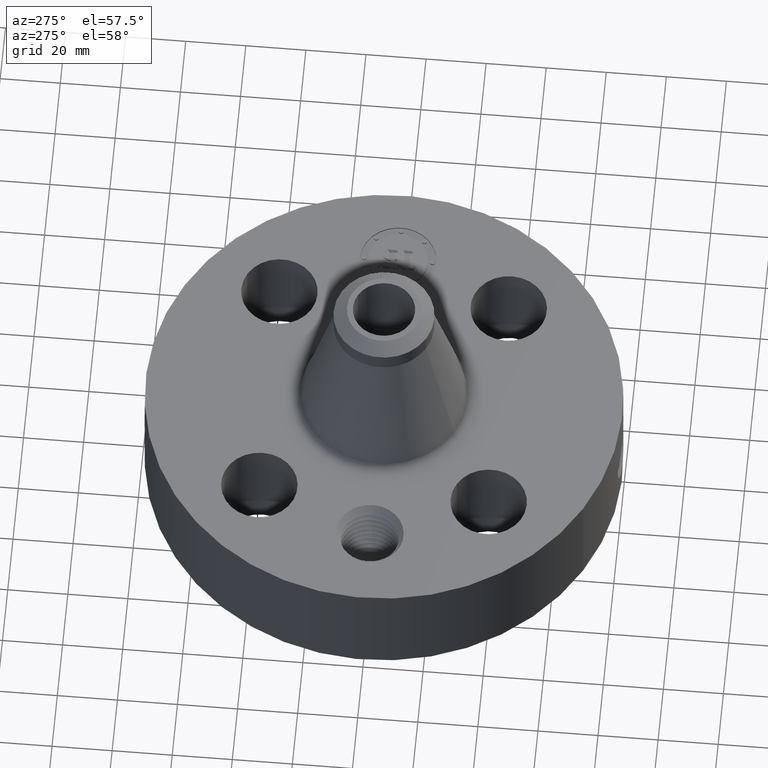
[diagram: clean part render]
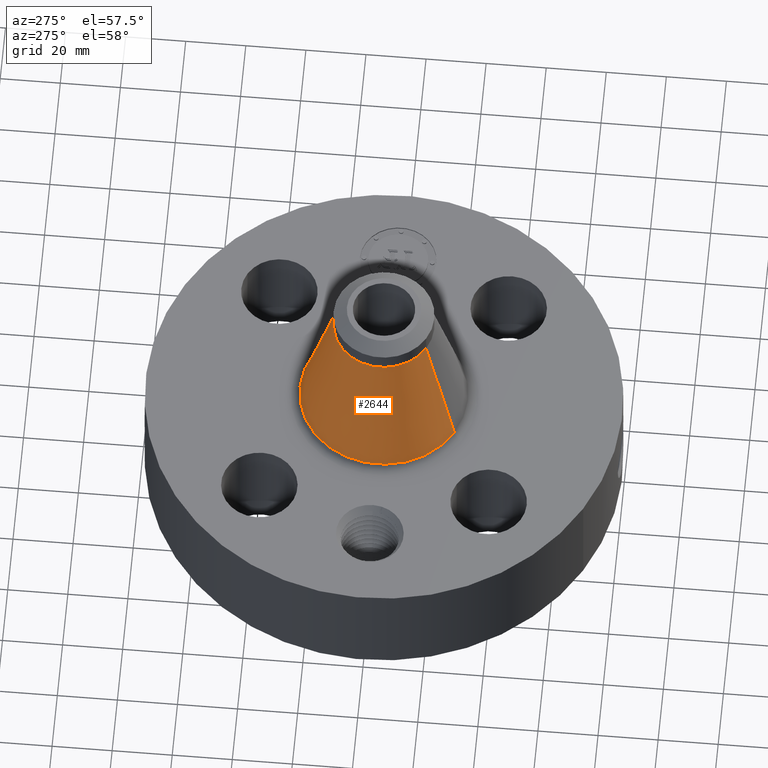
[diagram: same view with one face highlighted and labeled with its STEP entity id]
A machine part, auxiliary view. The second image highlights one B-rep face of the part: STEP entity #2644.
In plain terms, the highlighted conical surface has half-angle 14.877 deg.
Its self-contained STEP definition (entity closure, byte-faithful):
#1951=AXIS2_PLACEMENT_3D('Circle Axis2P3D',#1949,#1950,$) ;
#2605=AXIS2_PLACEMENT_3D('Cone Axis2P3D',#2602,#2603,#2604) ;
#2635=AXIS2_PLACEMENT_3D('Circle Axis2P3D',#2633,#2634,$) ;
#1927=CARTESIAN_POINT('Vertex',(0.527994584647,0.966487604326,1.83919099619)) ;
#1934=CARTESIAN_POINT('Vertex',(-0.527994584647,-0.966487604326,1.83919099619)) ;
#1949=CARTESIAN_POINT('Axis2P3D Location',(0.,0.,1.83919099619)) ;
#2602=CARTESIAN_POINT('Axis2P3D Location',(0.,0.,3.50044891098)) ;
#2607=CARTESIAN_POINT('Line Origine',(0.422207720063,0.772846047588,2.66981995359)) ;
#2611=CARTESIAN_POINT('Vertex',(0.31642085548,0.57920449085,3.50044891098)) ;
#2618=CARTESIAN_POINT('Vertex',(-0.31642085548,-0.57920449085,3.50044891098)) ;
#2621=CARTESIAN_POINT('Line Origine',(-0.422207720063,-0.772846047588,2.66981995359)) ;
#2633=CARTESIAN_POINT('Axis2P3D Location',(0.,0.,3.50044891098)) ;
#1950=DIRECTION('Axis2P3D Direction',(0.,0.,-0.0393700787402)) ;
#2603=DIRECTION('Axis2P3D Direction',(0.,0.,-0.0393700787402)) ;
#2604=DIRECTION('Axis2P3D XDirection',(-0.0188750212049,-0.0345504945626,0.)) ;
#2608=DIRECTION('Vector Direction',(0.00484600500223,0.00887055265594,-0.0380503959388)) ;
#2622=DIRECTION('Vector Direction',(-0.00484600500223,-0.00887055265594,-0.0380503959388)) ;
#2634=DIRECTION('Axis2P3D Direction',(0.,0.,-0.0393700787402)) ;
#2609=VECTOR('Line Direction',#2608,0.0393700787402) ;
#2623=VECTOR('Line Direction',#2622,0.0393700787402) ;
#2639=ORIENTED_EDGE('',*,*,#1953,.F.) ;
#2640=ORIENTED_EDGE('',*,*,#2625,.T.) ;
#2641=ORIENTED_EDGE('',*,*,#2637,.T.) ;
#2642=ORIENTED_EDGE('',*,*,#2613,.F.) ;
#2644=ADVANCED_FACE('PartBody',(#2643),#2606,.T.) ;
#1952=CIRCLE('generated circle',#1951,1.10130675596) ;
#2636=CIRCLE('generated circle',#2635,0.660000000003) ;
#2606=CONICAL_SURFACE('Cone',#2605,0.660000000003,0.259649377927) ;
#1953=EDGE_CURVE('',#1935,#1928,#1952,.T.) ;
#2613=EDGE_CURVE('',#1928,#2612,#2610,.F.) ;
#2625=EDGE_CURVE('',#1935,#2619,#2624,.F.) ;
#2637=EDGE_CURVE('',#2619,#2612,#2636,.T.) ;
#2638=EDGE_LOOP('',(#2639,#2640,#2641,#2642)) ;
#2643=FACE_OUTER_BOUND('',#2638,.T.) ;
#2610=LINE('Line',#2607,#2609) ;
#2624=LINE('Line',#2621,#2623) ;
#1928=VERTEX_POINT('',#1927) ;
#1935=VERTEX_POINT('',#1934) ;
#2612=VERTEX_POINT('',#2611) ;
#2619=VERTEX_POINT('',#2618) ;